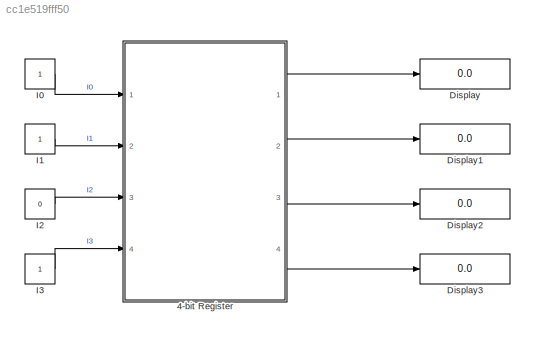
MODEL slx_cc1e519fff50
KIND model
CONFIG AbsTol = auto
CONFIG FixedStep = auto
CONFIG MaxStep = auto
CONFIG MinStep = auto
CONFIG RelTol = 1e-3
CONFIG SampleTimeConstraint = Unconstrained
CONFIG Solver = ode45
CONFIG SolverMode = Auto
CONFIG SolverName = ode45
CONFIG StartTime = 0.0
CONFIG StopTime = 2
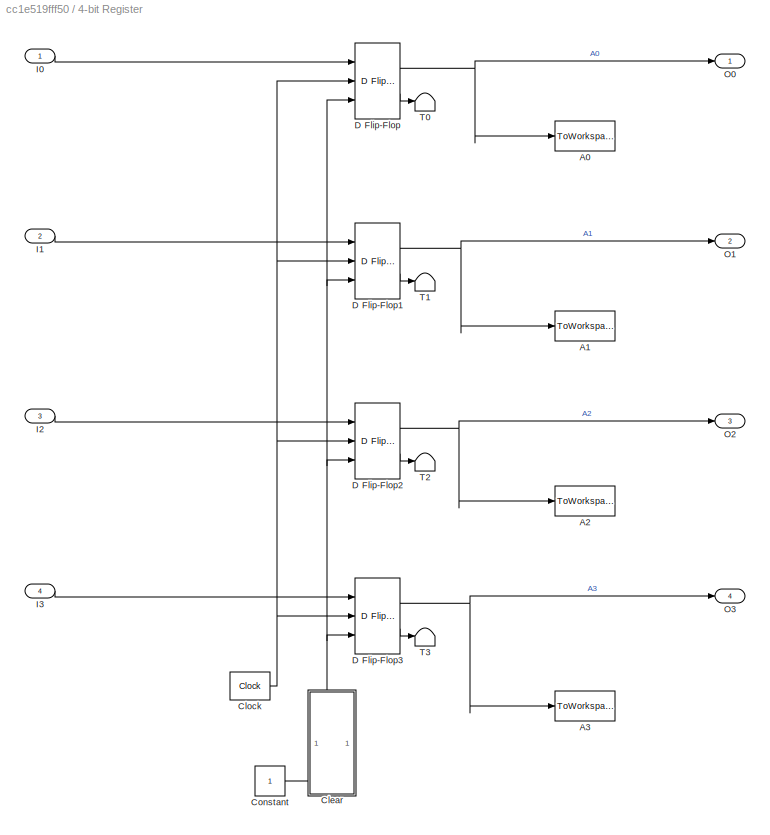
BLOCK [SubSystem] 4-bit Register
  Ports = [4, 4]
  RequestExecContextInheritance = off
BLOCK [ToWorkspace] 4-bit Register/A0
  FixptAsFi = on
  MaxDataPoints = 1
  Ports = [1]
  SampleTime = -1
  Save2DSignal = 2-D array (concatenate along first dimension)
  VariableName = A0
BLOCK [ToWorkspace] 4-bit Register/A1
  FixptAsFi = on
  MaxDataPoints = 1
  Ports = [1]
  SampleTime = -1
  Save2DSignal = 2-D array (concatenate along first dimension)
  VariableName = A1
BLOCK [ToWorkspace] 4-bit Register/A2
  FixptAsFi = on
  MaxDataPoints = 1
  Ports = [1]
  SampleTime = -1
  Save2DSignal = 2-D array (concatenate along first dimension)
  VariableName = A2
BLOCK [ToWorkspace] 4-bit Register/A3
  FixptAsFi = on
  MaxDataPoints = 1
  Ports = [1]
  SampleTime = -1
  Save2DSignal = 2-D array (concatenate along first dimension)
  VariableName = A3
BLOCK [SubSystem] 4-bit Register/Clear
  DialogController = hmiCreateDDGDialog
  IsWebBlock = on
  MaskHideContents = on
  Ports = []
  RequestExecContextInheritance = off
BLOCK [Reference] 4-bit Register/Clock  REF=simulink_extras/Flip Flops/Clock
  Ports = [0, 1]
  SourceBlock = simulink_extras/Flip Flops/Clock
  SourceType = Digital clock
  period = 2
BLOCK [Constant] 4-bit Register/Constant
  OutDataTypeStr = boolean
BLOCK [Reference] 4-bit Register/D Flip-Flop  REF=simulink_extras/Flip Flops/D Flip-Flop
  Ports = [3, 2]
  SourceBlock = simulink_extras/Flip Flops/D Flip-Flop
  SourceType = DFlipFlop
BLOCK [Reference] 4-bit Register/D Flip-Flop1  REF=simulink_extras/Flip Flops/D Flip-Flop
  Ports = [3, 2]
  SourceBlock = simulink_extras/Flip Flops/D Flip-Flop
  SourceType = DFlipFlop
BLOCK [Reference] 4-bit Register/D Flip-Flop2  REF=simulink_extras/Flip Flops/D Flip-Flop
  Ports = [3, 2]
  SourceBlock = simulink_extras/Flip Flops/D Flip-Flop
  SourceType = DFlipFlop
BLOCK [Reference] 4-bit Register/D Flip-Flop3  REF=simulink_extras/Flip Flops/D Flip-Flop
  Ports = [3, 2]
  SourceBlock = simulink_extras/Flip Flops/D Flip-Flop
  SourceType = DFlipFlop
BLOCK [Inport] 4-bit Register/I0
  IconDisplay = Port number
BLOCK [Inport] 4-bit Register/I1
  IconDisplay = Port number
  Port = 2
BLOCK [Inport] 4-bit Register/I2
  IconDisplay = Port number
  Port = 3
BLOCK [Inport] 4-bit Register/I3
  IconDisplay = Port number
  Port = 4
BLOCK [Outport] 4-bit Register/O0
  IconDisplay = Port number
BLOCK [Outport] 4-bit Register/O1
  IconDisplay = Port number
  Port = 2
BLOCK [Outport] 4-bit Register/O2
  IconDisplay = Port number
  Port = 3
BLOCK [Outport] 4-bit Register/O3
  IconDisplay = Port number
  Port = 4
BLOCK [Terminator] 4-bit Register/T0
BLOCK [Terminator] 4-bit Register/T1
BLOCK [Terminator] 4-bit Register/T2
BLOCK [Terminator] 4-bit Register/T3
BLOCK [Display] Display
  Decimation = 1
  Ports = [1]
BLOCK [Display] Display1
  Decimation = 1
  Ports = [1]
BLOCK [Display] Display2
  Decimation = 1
  Ports = [1]
BLOCK [Display] Display3
  Decimation = 1
  Ports = [1]
BLOCK [Constant] I0
  OutDataTypeStr = boolean
BLOCK [Constant] I1
  OutDataTypeStr = boolean
BLOCK [Constant] I2
  OutDataTypeStr = boolean
  Value = 0
BLOCK [Constant] I3
  OutDataTypeStr = boolean
NET 4-bit Register/Clock:1 -> 4-bit Register/D Flip-Flop1:2, 4-bit Register/D Flip-Flop2:2, 4-bit Register/D Flip-Flop3:2, 4-bit Register/D Flip-Flop:2
NET 4-bit Register/Constant:1 -> 4-bit Register/D Flip-Flop1:3, 4-bit Register/D Flip-Flop2:3, 4-bit Register/D Flip-Flop3:3, 4-bit Register/D Flip-Flop:3
NET 4-bit Register/D Flip-Flop1:1 -> 4-bit Register/A1:1, 4-bit Register/O1:1
LINE 4-bit Register/D Flip-Flop1:2 -> 4-bit Register/T1:1
NET 4-bit Register/D Flip-Flop2:1 -> 4-bit Register/A2:1, 4-bit Register/O2:1
LINE 4-bit Register/D Flip-Flop2:2 -> 4-bit Register/T2:1
NET 4-bit Register/D Flip-Flop3:1 -> 4-bit Register/A3:1, 4-bit Register/O3:1
LINE 4-bit Register/D Flip-Flop3:2 -> 4-bit Register/T3:1
NET 4-bit Register/D Flip-Flop:1 -> 4-bit Register/A0:1, 4-bit Register/O0:1
LINE 4-bit Register/D Flip-Flop:2 -> 4-bit Register/T0:1
LINE 4-bit Register/I0:1 -> 4-bit Register/D Flip-Flop:1
LINE 4-bit Register/I1:1 -> 4-bit Register/D Flip-Flop1:1
LINE 4-bit Register/I2:1 -> 4-bit Register/D Flip-Flop2:1
LINE 4-bit Register/I3:1 -> 4-bit Register/D Flip-Flop3:1
LINE 4-bit Register:1 -> Display:1
LINE 4-bit Register:2 -> Display1:1
LINE 4-bit Register:3 -> Display2:1
LINE 4-bit Register:4 -> Display3:1
LINE I0:1 -> 4-bit Register:1
LINE I1:1 -> 4-bit Register:2
LINE I2:1 -> 4-bit Register:3
LINE I3:1 -> 4-bit Register:4
note: NET lines group one-source signal fan-out (src -> all destinations, sorted); 1:1 wires keep LINE
